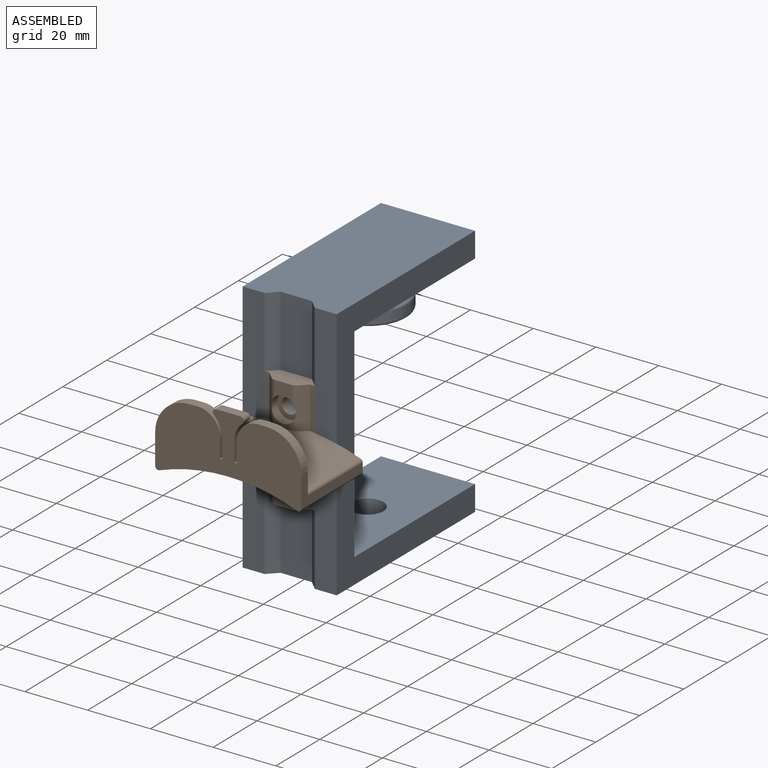
[diagram: assembled view]
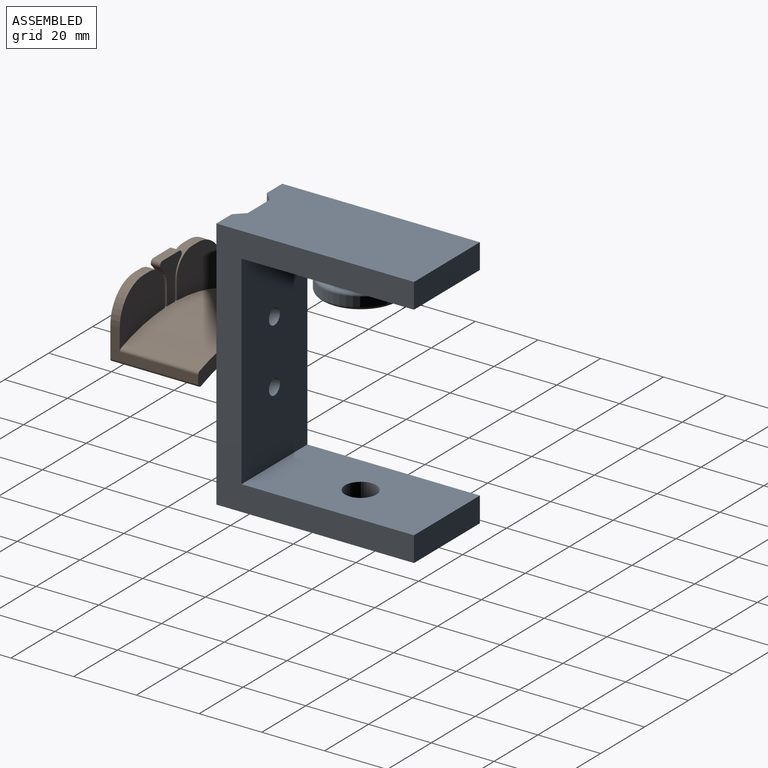
[diagram: assembled view, second angle]
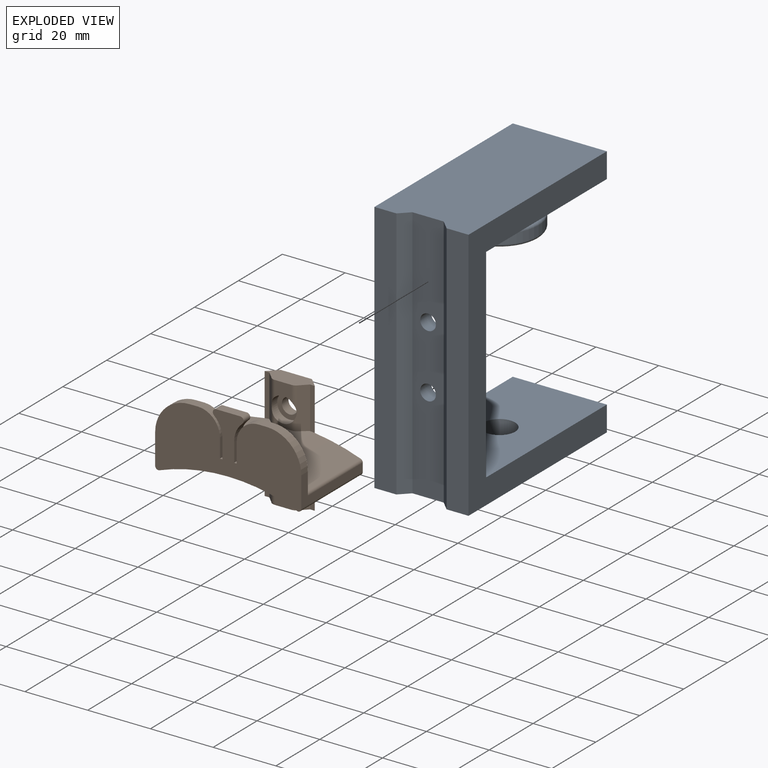
[diagram: exploded view]
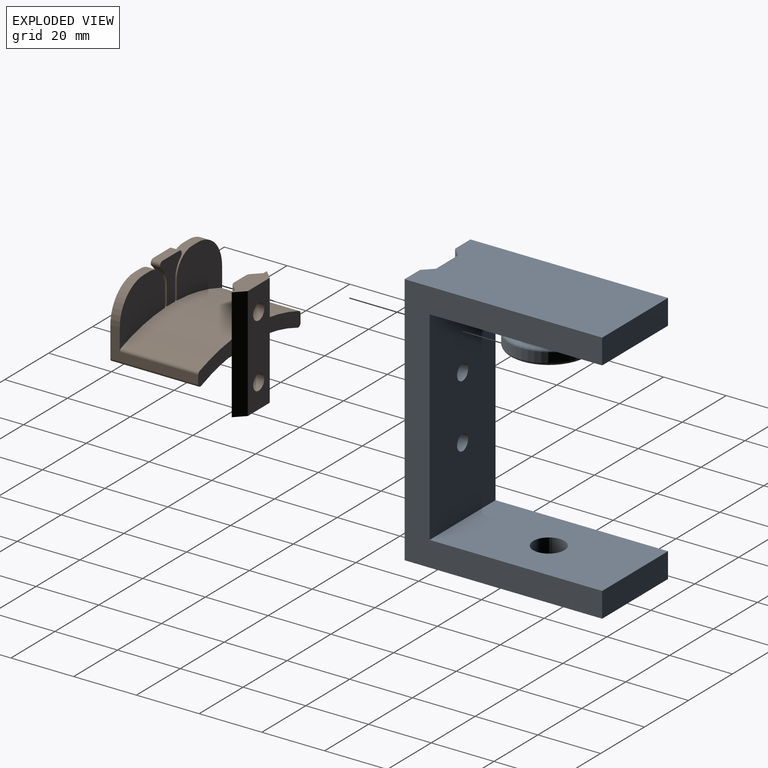
[diagram: exploded view, second angle]
ASSEMBLY  parts=2 mates=2
PART A: 24 faces, bbox 30x63x81 mm
  f0: plane 65x30mm, normal (0,1,0), area 1910.7mm2, adj f6,f7,f10,f11,f20,f21
  f1: plane 81x10mm, normal (0,-1,0), area 770.7mm2, adj f4,f9,f20,f21,f22,f23
  f2: plane 81x7mm, normal (0,-1,0), area 567mm2, adj f4,f9,f11,f23
  f3: plane 81x7mm, normal (0,-1,0), area 567mm2, adj f4,f9,f10,f22
  f4: plane 63x30mm, normal (0,0,-1), area 1772.5mm2, adj f1,f2,f3,f5,f10,f11,f19,f22
  f5: plane 30x8mm, normal (0,1,0), area 240mm2, adj f4,f6,f10,f11
  f6: plane 55x30mm, normal (0,0,1), area 1571.5mm2, adj f0,f5,f10,f11,f19
  f7: plane 55x30mm, normal (0,0,-1), area 1335.8mm2, adj f0,f8,f10,f11,f18
  f8: plane 30x8mm, normal (0,1,0), area 240mm2, adj f7,f9,f10,f11
  f9: plane 63x30mm, normal (0,0,1), area 1851mm2, adj f1,f2,f3,f8,f10,f11,f22,f23
  f10: plane 81x63mm, normal (1,0,0), area 1528mm2, adj f0,f3,f4,f5,f6,f7,f8,f9
  f11: plane 81x63mm, normal (-1,0,0), area 1528mm2, adj f0,f2,f4,f5,f6,f7,f8,f9
  f12: cylinder r=12.5mm len=25mm, axis (0,0,1), area 235.6mm2, adj f16,f17
  f13: plane 23x23mm, normal (0,0,-1), area 415.5mm2, adj f17
  f14: plane 23x23mm, normal (0,0,1), area 69.1mm2, adj f15,f16
  f15: torus R=10.5mm, axis (0,0,-1), area 141.3mm2, adj f14,f18
  f16: torus R=11.5mm, axis (0,0,-1), area 119.8mm2, adj f12,f14
  f17: torus R=11.5mm, axis (0,0,-1), area 119.8mm2, adj f12,f13
  f18: torus R=10mm, axis (0,0,1), area 92.4mm2, adj f7,f15
  f19: cylinder r=5mm len=10mm, axis (0,0,-1), area 251.3mm2, adj f4,f6
  f20: cylinder r=2.5mm len=5mm, axis (0,-1,0), area 78.5mm2, adj f0,f1
  f21: cylinder r=2.5mm len=5mm, axis (0,-1,0), area 78.5mm2, adj f0,f1
  f22: plane 81x3mm, normal (-0.71,-0.71,0), area 343.7mm2, adj f1,f3,f4,f9
  f23: plane 81x3mm, normal (0.71,-0.71,0), area 343.7mm2, adj f1,f2,f4,f9
PART B: 60 faces, bbox 46.6x31x36.8 mm
  f0: cylinder r=1mm len=25mm, axis (0,1,0), area 30.5mm2, adj f1,f34,f37,f48
  f1: cylinder r=66.07mm len=45.28mm, axis (0,1,0), area 1130.3mm2, adj f0,f2,f4,f5,f6,f7,f13,f26
  f2: cylinder r=1mm len=25mm, axis (0,1,0), area 30.5mm2, adj f1,f35,f38,f43
  f3: plane 7.57x5.35mm, normal (0,-1,0), area 36.6mm2, adj f15,f16,f31,f36
  f4: cylinder r=2mm len=5.33mm, axis (0,0,1), area 4.8mm2, adj f1,f13,f26,f33
  f5: cylinder r=2mm len=5.33mm, axis (0,0,-1), area 4.8mm2, adj f1,f13,f27,f33
  f6: plane 13.57x1.5mm, normal (0,-1,0), area 20.2mm2, adj f1,f21,f23,f27
  f7: plane 13.57x1.5mm, normal (0,-1,0), area 20.2mm2, adj f1,f21,f24,f26
  f8: plane 18.28x2.5mm, normal (-0.71,-0.71,0), area 64.3mm2, adj f15,f19,f22,f28,f36
  f9: plane 18.28x2.5mm, normal (0.71,-0.71,0), area 64.3mm2, adj f16,f17,f18,f22,f36
  f10: cylinder r=2.5mm len=5mm, axis (0,-1,0), area 47.1mm2, adj f20,f30
  f11: cylinder r=2.5mm len=5mm, axis (0,-1,0), area 47.1mm2, adj f20,f32
  f12: plane 5.35x4.9mm, normal (0,-1,0), area 22.5mm2, adj f14,f21,f29,f33
  f13: plane 5.35x2.29mm, normal (0,-1,0), area 8.3mm2, adj f1,f4,f5,f33
  f14: cylinder r=2mm len=7.88mm, axis (0,0,1), area 8.5mm2, adj f12,f21,f26,f33
  f15: cylinder r=2mm len=10.48mm, axis (0,0,1), area 12.2mm2, adj f3,f8,f31,f36
  f16: cylinder r=2mm len=10.48mm, axis (0,0,-1), area 12.2mm2, adj f3,f9,f31,f36
  f17: cylinder r=2mm len=7.88mm, axis (0,0,-1), area 8.5mm2, adj f9,f22,f25,f31
  f18: plane 18.07x1.5mm, normal (0,-1,0), area 27mm2, adj f9,f22,f23,f36
  f19: plane 18.07x1.5mm, normal (0,-1,0), area 27mm2, adj f8,f22,f24,f36
  f20: plane 36x10mm, normal (0,1,0), area 320.7mm2, adj f10,f11,f21,f22,f23,f24
  f21: plane 16x6mm, normal (0,0,1), area 68.8mm2, adj f6,f7,f12,f14,f20,f23,f24,f26
  f22: plane 16x6mm, normal (0,0,-1), area 68.8mm2, adj f8,f9,f17,f18,f19,f20,f23,f24
  f23: plane 36x3mm, normal (0.71,0.71,0), area 152.7mm2, adj f6,f18,f20,f21,f22,f34
  f24: plane 36x3mm, normal (-0.71,0.71,0), area 152.7mm2, adj f7,f19,f20,f21,f22,f35
  f25: plane 5.35x4.9mm, normal (0,-1,0), area 22.5mm2, adj f17,f22,f28,f31
  f26: plane 13.41x2.5mm, normal (-0.71,-0.71,0), area 47mm2, adj f1,f4,f7,f14,f21
  f27: plane 13.41x2.5mm, normal (0.71,-0.71,0), area 47mm2, adj f1,f5,f6,f21,f29
  f28: cylinder r=2mm len=7.88mm, axis (0,0,1), area 8.5mm2, adj f8,f22,f25,f31
  f29: cylinder r=2mm len=7.88mm, axis (0,0,-1), area 8.5mm2, adj f12,f21,f27,f33
  f30: plane 8x8mm, normal (0,-1,0), area 30.6mm2, adj f10,f31
  f31: cylinder r=4mm len=8mm, axis (0,-1,0), area 72mm2, adj f3,f15,f16,f17,f25,f28,f30
  f32: plane 8x8mm, normal (0,-1,0), area 30.6mm2, adj f11,f33
  f33: cylinder r=4mm len=8mm, axis (0,-1,0), area 72mm2, adj f4,f5,f12,f13,f14,f29,f32
  f34: plane 15.3x8.12mm, normal (0,1,0), area 70.6mm2, adj f0,f1,f23,f36,f37,f40
  f35: plane 15.3x8.12mm, normal (0,1,0), area 70.6mm2, adj f1,f2,f24,f36,f38,f41
  f36: cylinder r=61.57mm len=43.88mm, axis (0,1,0), area 1226.4mm2, adj f3,f8,f9,f15,f16,f18,f19,f34
  f37: plane 28x9.7mm, normal (1,0,0), area 95.8mm2, adj f0,f34,f39,f40,f48,f49
  f38: plane 28x9.7mm, normal (-1,0,0), area 95.8mm2, adj f2,f35,f39,f41,f43,f46
  f39: plane 46.59x22.5mm, normal (0,-1,0), area 818.2mm2, adj f1,f36,f37,f38,f40,f41,f42,f44
  f40: cylinder r=1mm len=28mm, axis (0,1,0), area 54.2mm2, adj f34,f36,f37,f39
  f41: cylinder r=1mm len=28mm, axis (0,1,0), area 54.2mm2, adj f35,f36,f38,f39
  f42: plane 6.14x3mm, normal (1,0,0), area 18.4mm2, adj f1,f39,f43,f44
  f43: plane 20.62x18.03mm, normal (0,1,0), area 265.9mm2, adj f1,f2,f38,f42,f44,f45,f46
  f44: cylinder r=7mm len=7mm, axis (0,-1,0), area 33mm2, adj f39,f42,f43,f45
  f45: plane 3x2.62mm, normal (0,0,1), area 7.9mm2, adj f39,f43,f44,f46
  f46: cylinder r=11mm len=11mm, axis (0,-1,0), area 51.8mm2, adj f38,f39,f43,f45
  f47: plane 6.14x3mm, normal (-1,0,0), area 18.4mm2, adj f1,f39,f48,f51
  f48: plane 20.62x18.03mm, normal (0,1,0), area 265.9mm2, adj f0,f1,f37,f47,f49,f50,f51
  f49: cylinder r=11mm len=11mm, axis (0,-1,0), area 51.8mm2, adj f37,f39,f48,f50
  f50: plane 3x2.62mm, normal (0,0,1), area 7.9mm2, adj f39,f48,f49,f51
  f51: cylinder r=7mm len=7mm, axis (0,-1,0), area 33mm2, adj f39,f47,f48,f50
  f52: plane 6.11x3mm, normal (-1,0,0), area 18.3mm2, adj f1,f39,f54,f59
  f53: plane 6.11x3mm, normal (1,0,0), area 18.3mm2, adj f1,f39,f55,f59
  f54: cylinder r=7.8mm len=5.88mm, axis (0,-1,0), area 20mm2, adj f39,f52,f58,f59
  f55: cylinder r=7.8mm len=5.88mm, axis (0,-1,0), area 20mm2, adj f39,f53,f56,f59
  f56: cylinder r=1.1mm len=3mm, axis (0,-1,0), area 8mm2, adj f39,f55,f57,f59
  f57: plane 7.65x3mm, normal (0,0,1), area 23mm2, adj f39,f56,f58,f59
  f58: cylinder r=1.1mm len=3mm, axis (0,-1,0), area 8mm2, adj f39,f54,f57,f59
  f59: plane 13.91x9.85mm, normal (0,1,0), area 72.8mm2, adj f1,f52,f53,f54,f55,f56,f57,f58
PLACE A t=(0,0,-2.38)mm
PLACE B t=(0,-8,-2.38)mm
MATE planar B.f20 <-> A.f1  axis (0,1,0) through (0,-5,-2.38)mm
MATE cylindrical B.f11 <-> A.f21  axis (0,1,0) through (0,-5,7.75)mm
